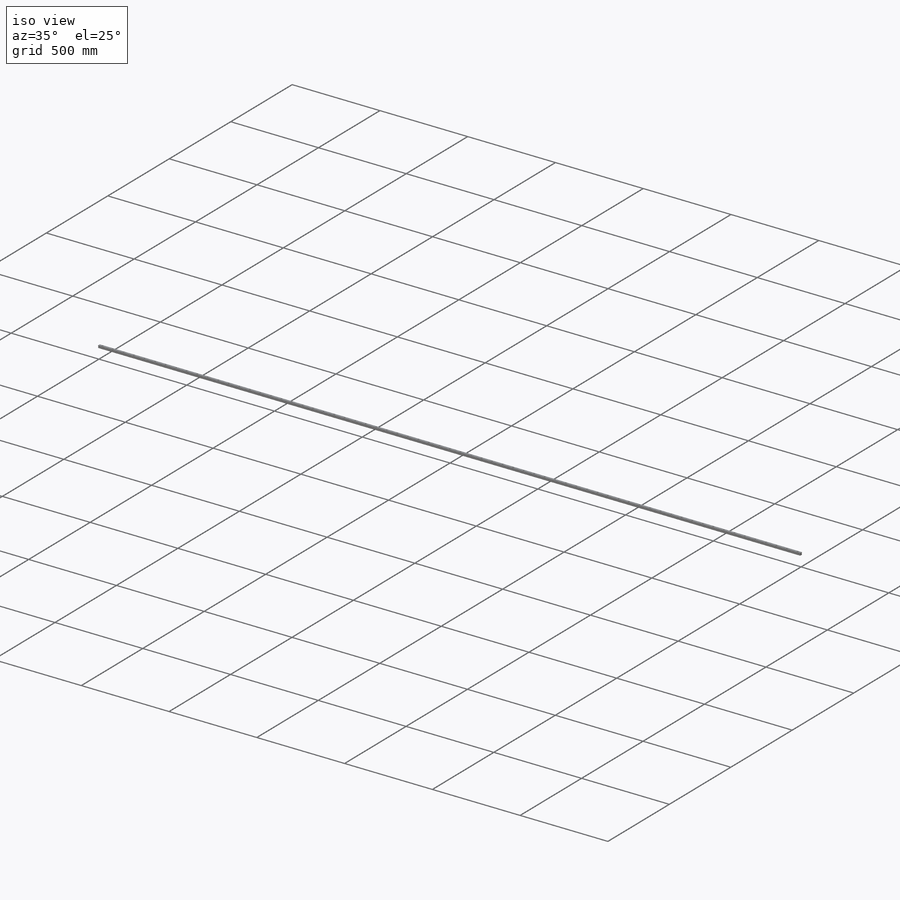
[diagram: iso view]
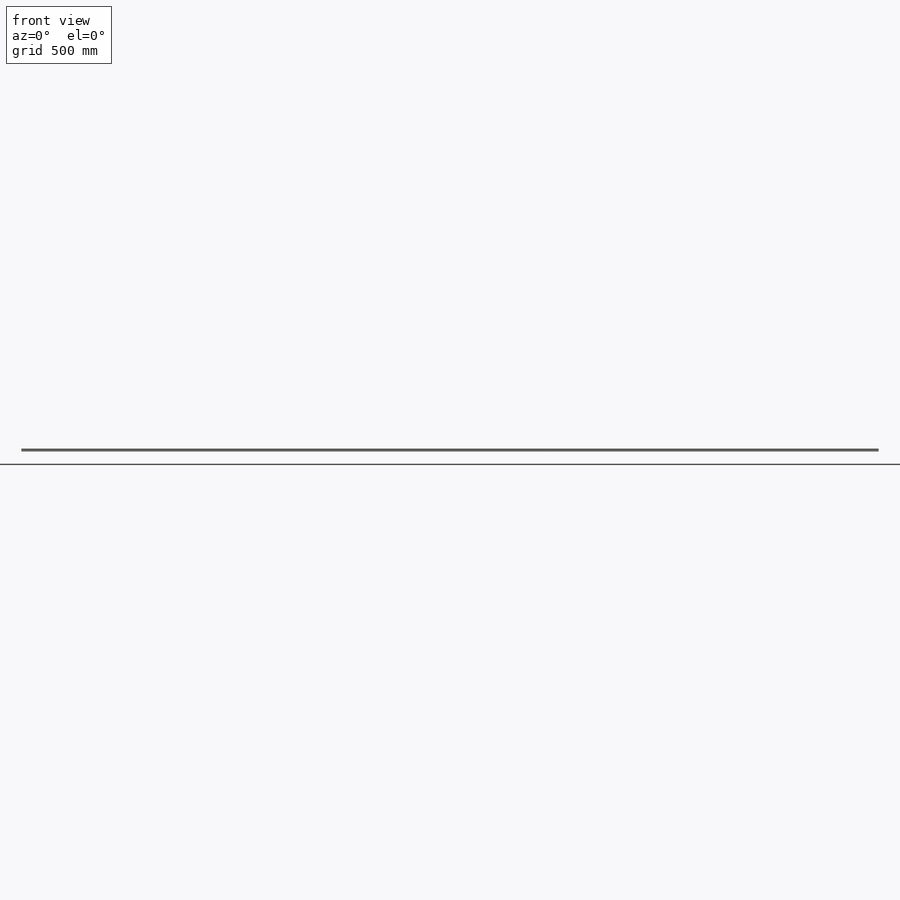
[diagram: front view]
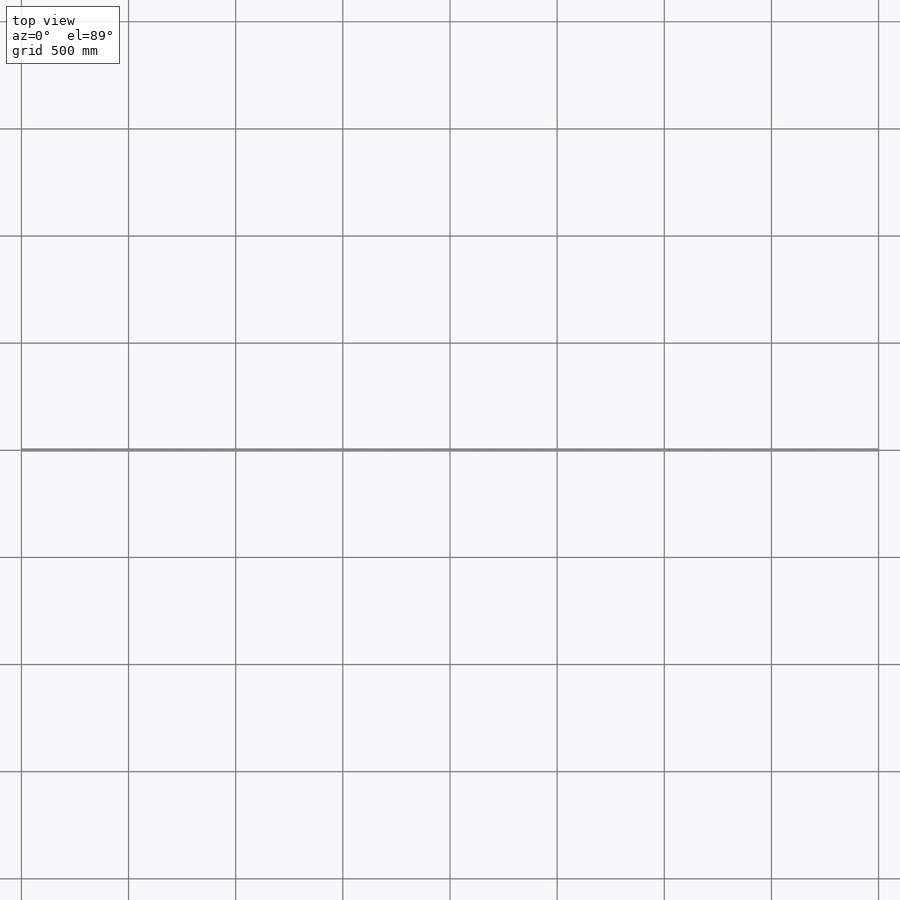
[diagram: top view]
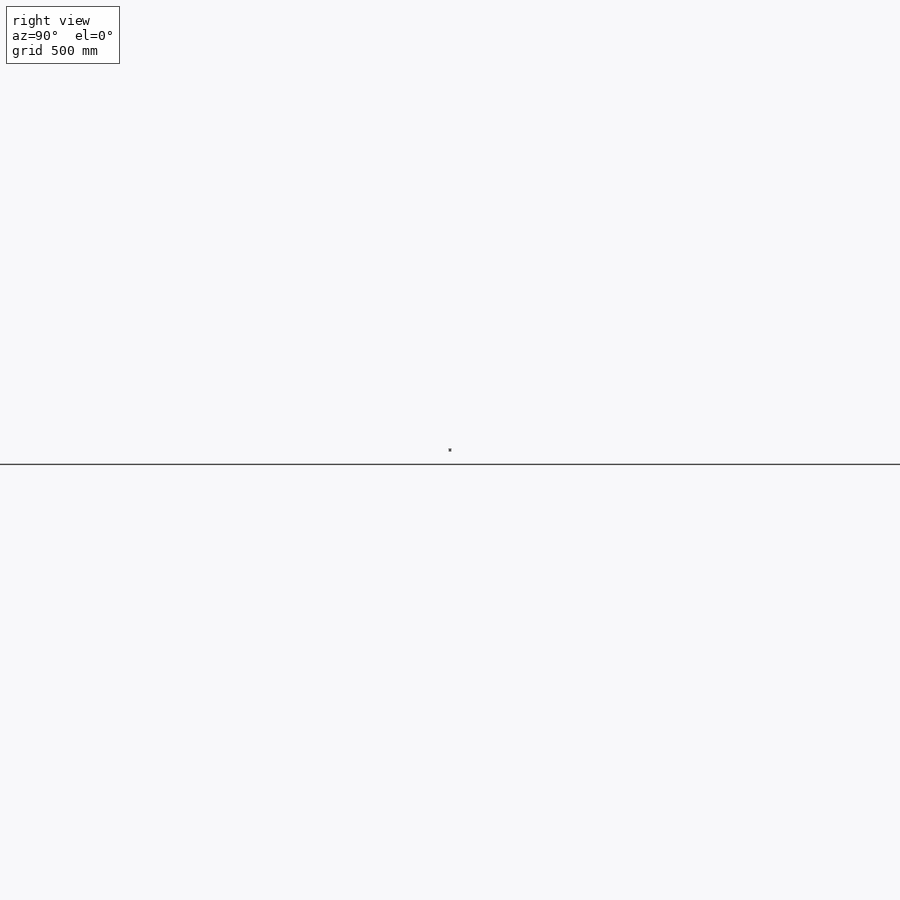
[diagram: right view]
SOLIDWORKS PART (.sldprt)
format: sldprt  version: not decoded by parser v0  size: 378,880 bytes
history: native  units: mm
features: sketch x4, cut_extrude x3, material x1, extrude x1, chamfer x1, pattern_linear x1 (+11 scaffold rows collapsed)
feature tree (22):
  scaffold x11  (default folders/planes/origin — collapsed)
  material  "Material <not specified>"
  sketch  "Sketch1"  dims[c1.D1=13.0mm c1.D2=6.5mm c1.D3=1.78mm c1.D4=2.0mm c1.D5=3.54mm c1.D6=2.0mm c1.D7=2.44mm c1.D8=4.6mm c1.D9=2.0mm c2.D9=~215.475332deg c3.D9=13.0mm c4.D9=45.0deg c5.D9=2.0mm c6.D9=135.0deg c6.D10=~2.503158mm c7.D10=135.0deg c7.D11=~1.725341mm c8.D11=135.0deg c8.D12=2.44mm c9.D12=135.0deg c9.D13=13.0mm c9.D9=1.78mm c9.D10=2.0mm c9.D11=3.54mm c10.D12=2.0mm c10.D14=2.44mm c10.D15=4.6mm]
  extrude  "Boss-Extrude1"  Depth=4000mm
  sketch  "Sketch2"  dims[D1=7.5mm D2=20.0mm]
  cut_extrude  "Cut-Extrude1"  Depth=5.3mm
  sketch  "Sketch3"  dims[D1=4.5mm]
  cut_extrude  "Cut-Extrude2"  [1 undecoded]
  chamfer  "Chamfer1"  Distance=1mm Angle=45deg
  pattern_linear  "LPattern1"  Count1=67 Count2=1 Spacing1=60mm Spacing2=10mm
  sketch  "Sketch4"  dims[D1=20.0mm]
  cut_extrude  "Cut-Extrude3"  Depth=2mm
decode coverage: 9 of 10 modeling features carry decoded parameters
note: ~ marks probable driven/reference dimensions
note: 1 parameter value undecoded
note: suppression state not decoded; provenance and decode notes live in map.json
